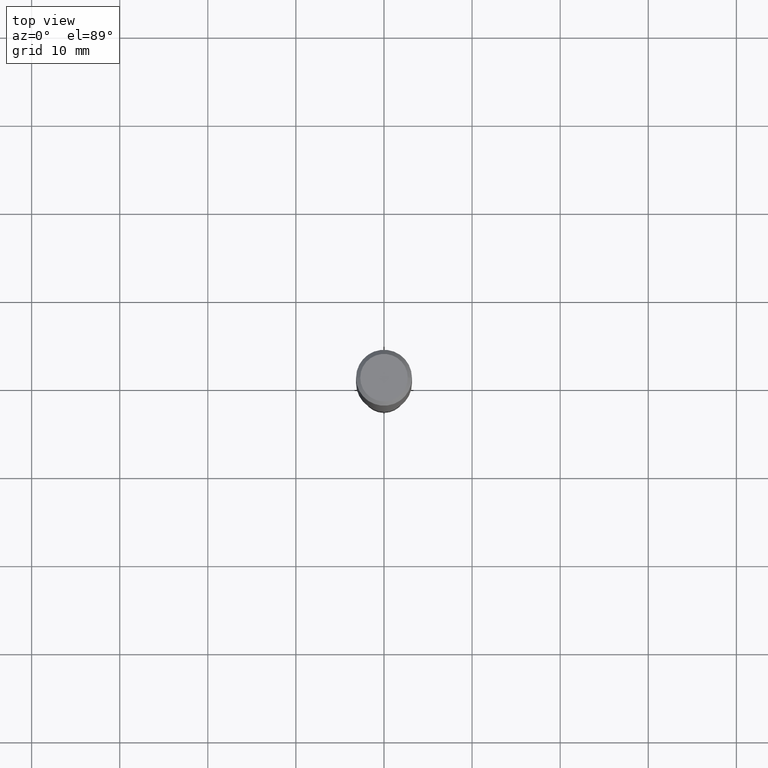
[diagram: clean part render]
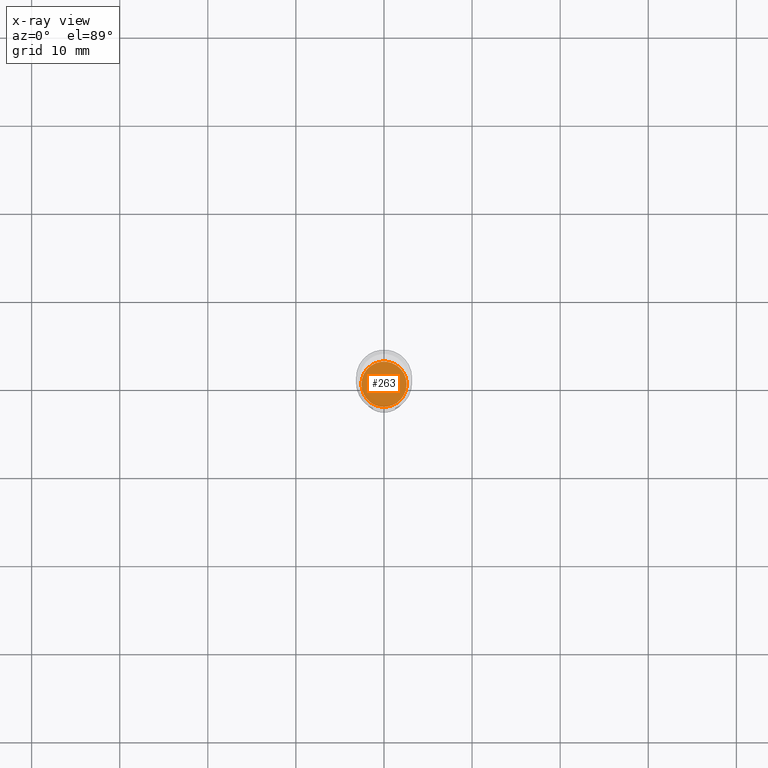
[diagram: x-ray — body ghosted, one internal face saturated and labeled with its STEP entity id]
A machine part, top view, then the same camera in x-ray: the body is ghosted and one INTERNAL B-rep face — a face not visible from any outside direction — is saturated and labeled: STEP entity #263.
In plain terms, the highlighted planar face has unit normal (-0, 0, 1).
Its self-contained STEP definition (entity closure, byte-faithful):
#18 = ORIENTED_EDGE ( 'NONE', *, *, #113, .F. ) ;
#47 = CARTESIAN_POINT ( 'NONE',  ( -0.1010500000000000009, -5.225689206524070655E-15, -1.703100000000000502 ) ) ;
#62 = DIRECTION ( 'NONE',  ( -2.438088387897960049E-29, 3.491481338843145188E-15, 1.000000000000000000 ) ) ;
#69 = AXIS2_PLACEMENT_3D ( 'NONE', #260, #447, #453 ) ;
#83 = FACE_OUTER_BOUND ( 'NONE', #363, .T. ) ;
#84 = AXIS2_PLACEMENT_3D ( 'NONE', #430, #62, #97 ) ;
#97 = DIRECTION ( 'NONE',  ( 1.000000000000000000, -6.982962677686265922E-15, 4.876176775795935793E-29 ) ) ;
#113 = EDGE_CURVE ( 'NONE', #178, #302, #249, .T. ) ;
#161 = DIRECTION ( 'NONE',  ( -2.445468806185136597E-29, 3.491481338843145583E-15, 1.000000000000000000 ) ) ;
#178 = VERTEX_POINT ( 'NONE', #47 ) ;
#190 = EDGE_CURVE ( 'NONE', #302, #178, #333, .T. ) ;
#199 = CARTESIAN_POINT ( 'NONE',  ( 4.164877923813907472E-29, -5.946341868183762903E-15, -1.703100000000000502 ) ) ;
#249 = CIRCLE ( 'NONE', #69, 0.1010500000000000009 ) ;
#260 = CARTESIAN_POINT ( 'NONE',  ( 4.164877923813907472E-29, -5.946341868183762903E-15, -1.703100000000000502 ) ) ;
#263 = ADVANCED_FACE ( 'NONE', ( #83 ), #394, .F. ) ;
#302 = VERTEX_POINT ( 'NONE', #389 ) ;
#324 = ORIENTED_EDGE ( 'NONE', *, *, #190, .F. ) ;
#325 = AXIS2_PLACEMENT_3D ( 'NONE', #199, #161, #459 ) ;
#333 = CIRCLE ( 'NONE', #325, 0.1010500000000000009 ) ;
#363 = EDGE_LOOP ( 'NONE', ( #324, #18 ) ) ;
#389 = CARTESIAN_POINT ( 'NONE',  ( 0.1010500000000000009, -6.651970246763959889E-15, -1.703100000000000502 ) ) ;
#394 = PLANE ( 'NONE',  #84 ) ;
#430 = CARTESIAN_POINT ( 'NONE',  ( 9.497364884374471573E-30, -1.055060739812894593E-14, -1.703100000000000280 ) ) ;
#447 = DIRECTION ( 'NONE',  ( -2.445468806185136597E-29, 3.491481338843145583E-15, 1.000000000000000000 ) ) ;
#453 = DIRECTION ( 'NONE',  ( 1.000000000000000000, -6.982962677686269077E-15, 0.000000000000000000 ) ) ;
#459 = DIRECTION ( 'NONE',  ( 1.000000000000000000, -6.982962677686269077E-15, 0.000000000000000000 ) ) ;